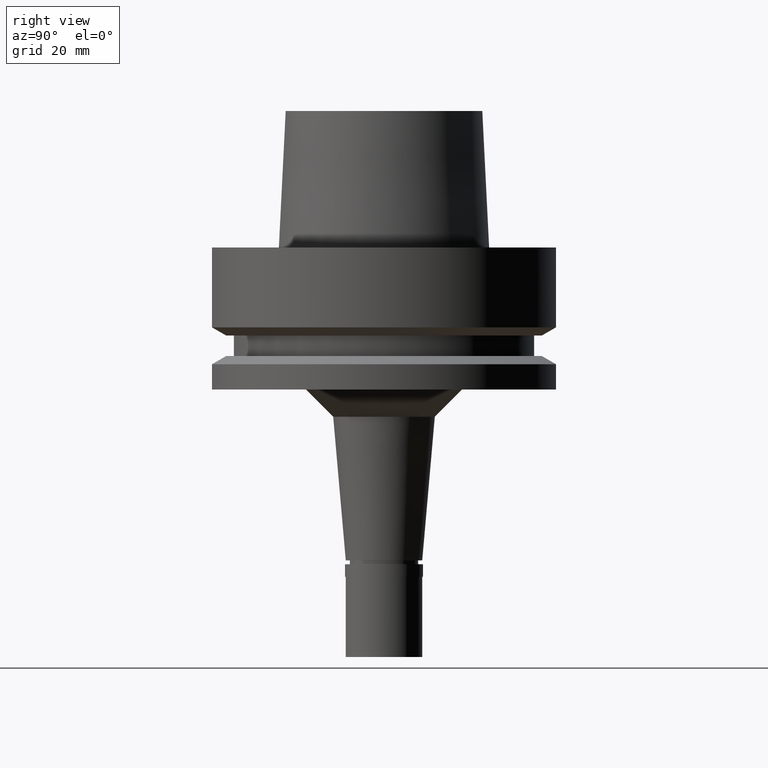
[diagram: clean part render]
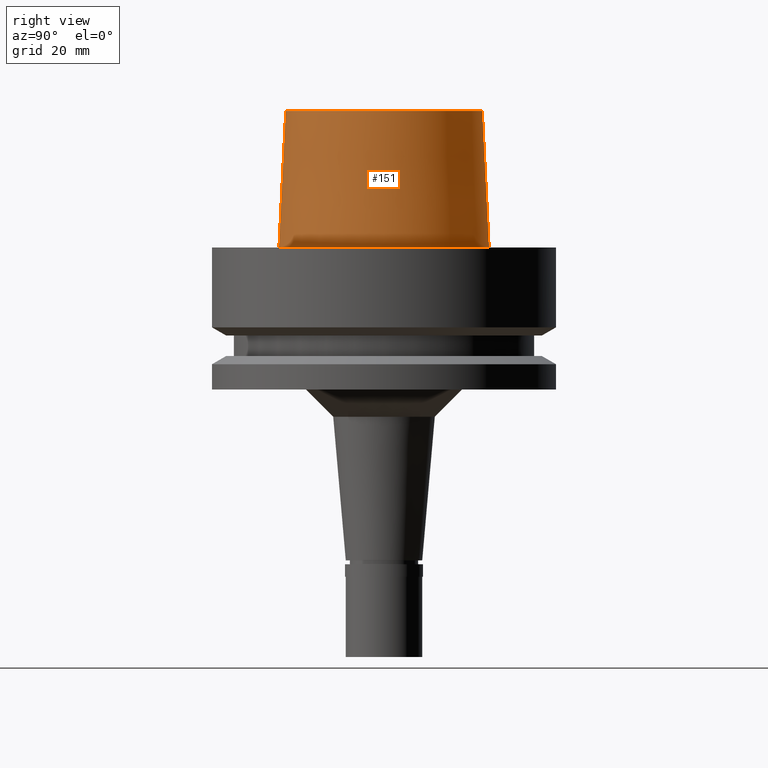
[diagram: same view with one face highlighted and labeled with its STEP entity id]
A machine part, right view. The second image highlights one B-rep face of the part: STEP entity #151.
In plain terms, the highlighted conical surface has half-angle 2.862 deg.
Its self-contained STEP definition (entity closure, byte-faithful):
#82 = DIRECTION ( 'NONE',  ( 0.0000000000000000000, -1.000000000000000000, 0.0000000000000000000 ) ) ;
#99 = EDGE_LOOP ( 'NONE', ( #312, #2272, #1964, #1712 ) ) ;
#110 = VECTOR ( 'NONE', #246, 999.9999999999998863 ) ;
#151 = ADVANCED_FACE ( 'NONE', ( #991 ), #547, .T. ) ;
#246 = DIRECTION ( 'NONE',  ( 0.0000000000000000000, -0.04993752584486958745, -0.9987523434327917338 ) ) ;
#312 = ORIENTED_EDGE ( 'NONE', *, *, #2521, .T. ) ;
#468 = CARTESIAN_POINT ( 'NONE',  ( 0.0000000000000000000, -18.00000182882000033, 25.00000000000000000 ) ) ;
#547 = CONICAL_SURFACE ( 'NONE', #842, 18.62500068580999724, 0.04995830450907576964 ) ;
#596 = DIRECTION ( 'NONE',  ( 0.0000000000000000000, -1.000000000000000000, 0.0000000000000000000 ) ) ;
#659 = LINE ( 'NONE', #2316, #110 ) ;
#757 = CARTESIAN_POINT ( 'NONE',  ( 0.0000000000000000000, 19.24999954280000125, 0.0000000000000000000 ) ) ;
#829 = DIRECTION ( 'NONE',  ( 0.0000000000000000000, 1.000000000000000000, 0.0000000000000000000 ) ) ;
#842 = AXIS2_PLACEMENT_3D ( 'NONE', #2685, #2019, #596 ) ;
#926 = DIRECTION ( 'NONE',  ( 0.0000000000000000000, 0.0000000000000000000, 1.000000000000000000 ) ) ;
#948 = CARTESIAN_POINT ( 'NONE',  ( 0.0000000000000000000, 18.00000182882000033, 25.00000000000000000 ) ) ;
#991 = FACE_OUTER_BOUND ( 'NONE', #99, .T. ) ;
#1056 = CARTESIAN_POINT ( 'NONE',  ( 0.0000000000000000000, 1.377727649040999975E-14, 25.00000000000000000 ) ) ;
#1075 = VERTEX_POINT ( 'NONE', #1908 ) ;
#1261 = DIRECTION ( 'NONE',  ( 0.0000000000000000000, 0.0000000000000000000, -1.000000000000000000 ) ) ;
#1335 = CARTESIAN_POINT ( 'NONE',  ( 0.0000000000000000000, 1.377727649040999975E-14, 2.273736754432000254E-13 ) ) ;
#1473 = VERTEX_POINT ( 'NONE', #757 ) ;
#1539 = CIRCLE ( 'NONE', #2450, 18.00000182882000033 ) ;
#1602 = EDGE_CURVE ( 'NONE', #1075, #1473, #2591, .T. ) ;
#1712 = ORIENTED_EDGE ( 'NONE', *, *, #1602, .F. ) ;
#1733 = DIRECTION ( 'NONE',  ( 0.0000000000000000000, 0.04993752584486958745, -0.9987523434327917338 ) ) ;
#1908 = CARTESIAN_POINT ( 'NONE',  ( 0.0000000000000000000, 18.00000182882000033, 25.00000000000000000 ) ) ;
#1964 = ORIENTED_EDGE ( 'NONE', *, *, #2082, .T. ) ;
#2019 = DIRECTION ( 'NONE',  ( 0.0000000000000000000, 0.0000000000000000000, -1.000000000000000000 ) ) ;
#2082 = EDGE_CURVE ( 'NONE', #2126, #1473, #2303, .T. ) ;
#2126 = VERTEX_POINT ( 'NONE', #2495 ) ;
#2153 = VERTEX_POINT ( 'NONE', #468 ) ;
#2179 = AXIS2_PLACEMENT_3D ( 'NONE', #1335, #926, #82 ) ;
#2225 = VECTOR ( 'NONE', #1733, 999.9999999999998863 ) ;
#2272 = ORIENTED_EDGE ( 'NONE', *, *, #2291, .T. ) ;
#2291 = EDGE_CURVE ( 'NONE', #2153, #2126, #659, .T. ) ;
#2303 = CIRCLE ( 'NONE', #2179, 19.24999954280000125 ) ;
#2316 = CARTESIAN_POINT ( 'NONE',  ( 0.0000000000000000000, -18.00000182882000033, 25.00000000000000000 ) ) ;
#2450 = AXIS2_PLACEMENT_3D ( 'NONE', #1056, #1261, #829 ) ;
#2495 = CARTESIAN_POINT ( 'NONE',  ( 0.0000000000000000000, -19.24999954280000125, 2.273736754432000254E-13 ) ) ;
#2521 = EDGE_CURVE ( 'NONE', #1075, #2153, #1539, .T. ) ;
#2591 = LINE ( 'NONE', #948, #2225 ) ;
#2685 = CARTESIAN_POINT ( 'NONE',  ( 0.0000000000000000000, 1.377727649040999975E-14, 12.50000000000000000 ) ) ;